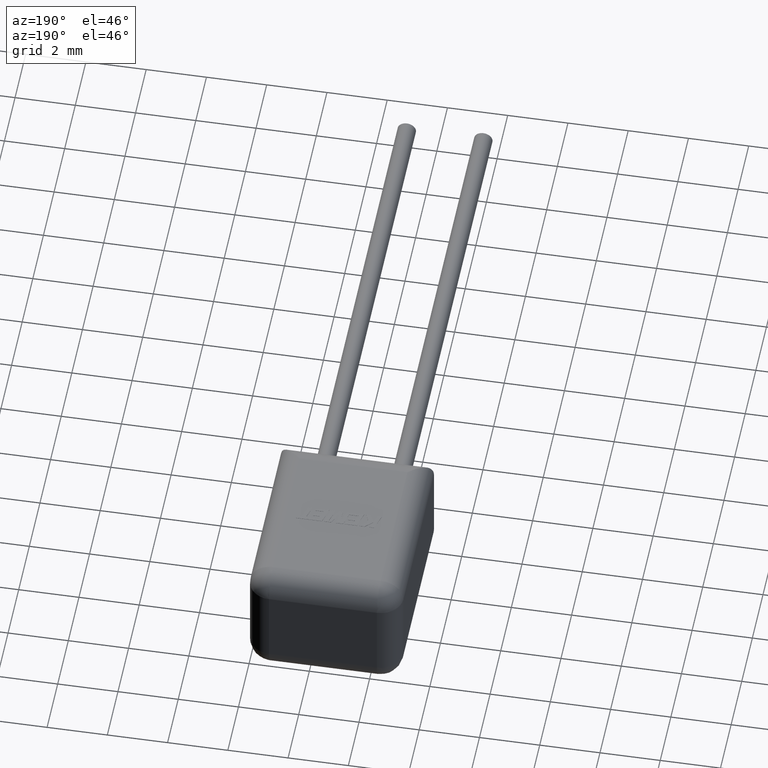
[diagram: clean part render]
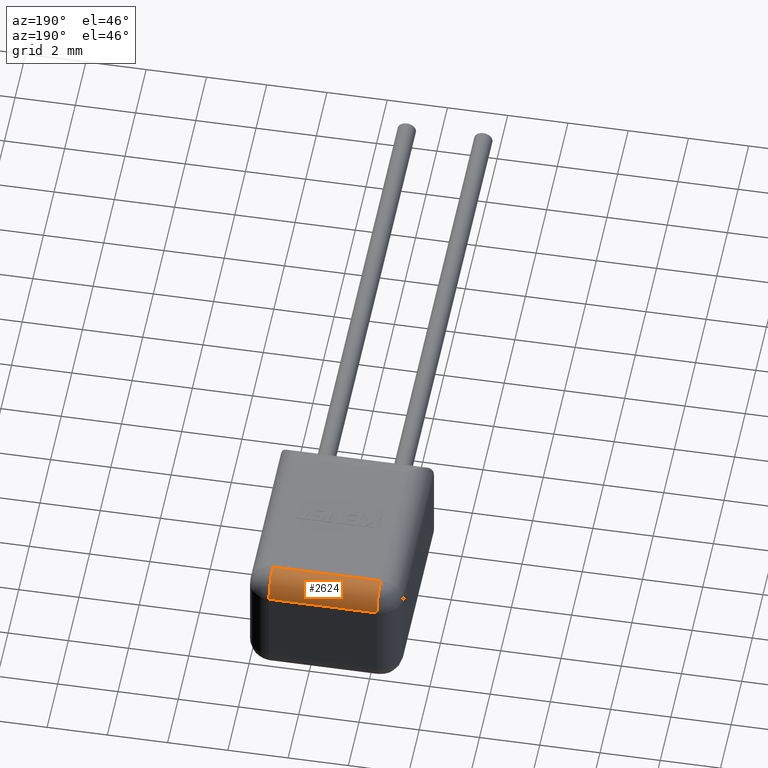
[diagram: same view with one face highlighted and labeled with its STEP entity id]
A machine part, auxiliary view. The second image highlights one B-rep face of the part: STEP entity #2624.
In plain terms, the highlighted cylindrical surface (edge-blend (fillet) strip) has radius 0.75 mm, axis along (-1, 0, 0).
Its self-contained STEP definition (entity closure, byte-faithful):
#107 = VERTEX_POINT ( 'NONE', #249 ) ;
#126 = LINE ( 'NONE', #1988, #1572 ) ;
#193 = DIRECTION ( 'NONE',  ( 1.000000000000000000, -0.0000000000000000000, 2.891205793294679300E-016 ) ) ;
#243 = AXIS2_PLACEMENT_3D ( 'NONE', #1934, #193, #1667 ) ;
#249 = CARTESIAN_POINT ( 'NONE',  ( -4.330000000000000100, 5.755759999999998700, 4.070000000000000300 ) ) ;
#492 = VERTEX_POINT ( 'NONE', #2757 ) ;
#628 = EDGE_CURVE ( 'NONE', #492, #107, #1656, .T. ) ;
#975 = AXIS2_PLACEMENT_3D ( 'NONE', #1037, #1663, #2790 ) ;
#1037 = CARTESIAN_POINT ( 'NONE',  ( -4.330000000000000100, 5.755759999999998700, 3.320000000000000700 ) ) ;
#1310 = CARTESIAN_POINT ( 'NONE',  ( 0.0000000000000000000, 5.755759999999998700, 3.320000000000000700 ) ) ;
#1334 = FACE_OUTER_BOUND ( 'NONE', #2236, .T. ) ;
#1572 = VECTOR ( 'NONE', #2529, 1000.000000000000000 ) ;
#1656 = LINE ( 'NONE', #2932, #2163 ) ;
#1663 = DIRECTION ( 'NONE',  ( -1.000000000000000000, 0.0000000000000000000, 0.0000000000000000000 ) ) ;
#1667 = DIRECTION ( 'NONE',  ( 2.891205793294679300E-016, 0.0000000000000000000, -1.000000000000000000 ) ) ;
#1724 = AXIS2_PLACEMENT_3D ( 'NONE', #1310, #2474, #1873 ) ;
#1813 = EDGE_CURVE ( 'NONE', #107, #3171, #2257, .T. ) ;
#1861 = ORIENTED_EDGE ( 'NONE', *, *, #2208, .F. ) ;
#1863 = CARTESIAN_POINT ( 'NONE',  ( -0.7499999999999997800, 6.505759999999998700, 3.320000000000000700 ) ) ;
#1867 = CYLINDRICAL_SURFACE ( 'NONE', #1724, 0.7499999999999997800 ) ;
#1873 = DIRECTION ( 'NONE',  ( 0.0000000000000000000, 0.0000000000000000000, 1.000000000000000000 ) ) ;
#1934 = CARTESIAN_POINT ( 'NONE',  ( -0.7499999999999997800, 5.755759999999998700, 3.320000000000000700 ) ) ;
#1988 = CARTESIAN_POINT ( 'NONE',  ( -5.079999999999999200, 6.505759999999998700, 3.320000000000000700 ) ) ;
#2024 = VERTEX_POINT ( 'NONE', #1863 ) ;
#2163 = VECTOR ( 'NONE', #3228, 1000.000000000000000 ) ;
#2208 = EDGE_CURVE ( 'NONE', #2024, #492, #3304, .T. ) ;
#2236 = EDGE_LOOP ( 'NONE', ( #1861, #3042, #2852, #3020 ) ) ;
#2257 = CIRCLE ( 'NONE', #975, 0.7499999999999997800 ) ;
#2269 = CARTESIAN_POINT ( 'NONE',  ( -4.330000000000000100, 6.505759999999998700, 3.320000000000000700 ) ) ;
#2474 = DIRECTION ( 'NONE',  ( -1.000000000000000000, 0.0000000000000000000, 0.0000000000000000000 ) ) ;
#2529 = DIRECTION ( 'NONE',  ( 1.000000000000000000, -0.0000000000000000000, -0.0000000000000000000 ) ) ;
#2624 = ADVANCED_FACE ( 'NONE', ( #1334 ), #1867, .T. ) ;
#2757 = CARTESIAN_POINT ( 'NONE',  ( -0.7500000000000000000, 5.755759999999998700, 4.070000000000000300 ) ) ;
#2790 = DIRECTION ( 'NONE',  ( 0.0000000000000000000, 0.0000000000000000000, 1.000000000000000000 ) ) ;
#2852 = ORIENTED_EDGE ( 'NONE', *, *, #1813, .F. ) ;
#2932 = CARTESIAN_POINT ( 'NONE',  ( 0.0000000000000000000, 5.755759999999998700, 4.070000000000000300 ) ) ;
#3020 = ORIENTED_EDGE ( 'NONE', *, *, #628, .F. ) ;
#3042 = ORIENTED_EDGE ( 'NONE', *, *, #3140, .F. ) ;
#3140 = EDGE_CURVE ( 'NONE', #3171, #2024, #126, .T. ) ;
#3171 = VERTEX_POINT ( 'NONE', #2269 ) ;
#3228 = DIRECTION ( 'NONE',  ( -1.000000000000000000, 0.0000000000000000000, 0.0000000000000000000 ) ) ;
#3304 = CIRCLE ( 'NONE', #243, 0.7499999999999997800 ) ;